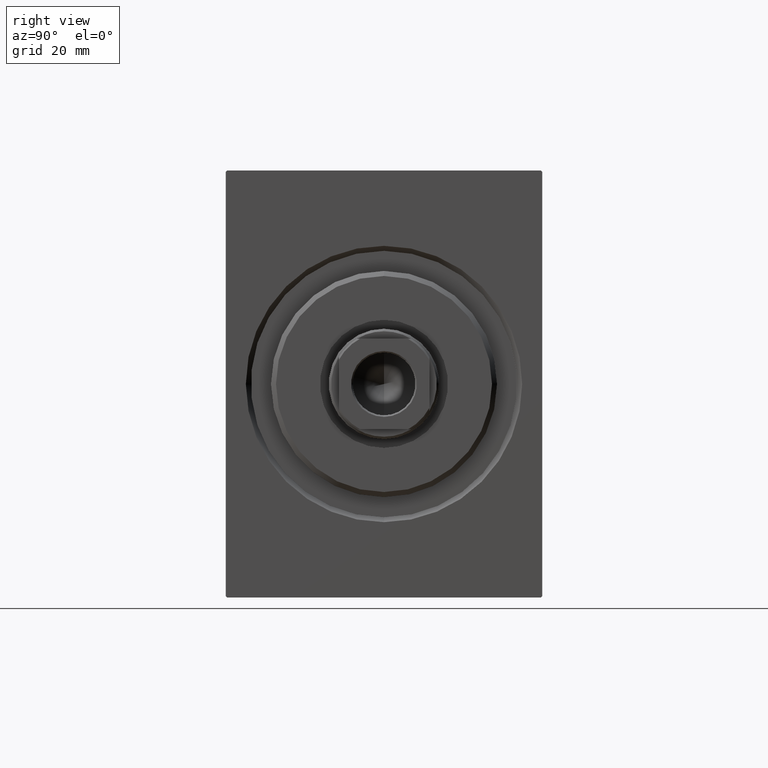
[diagram: clean part render]
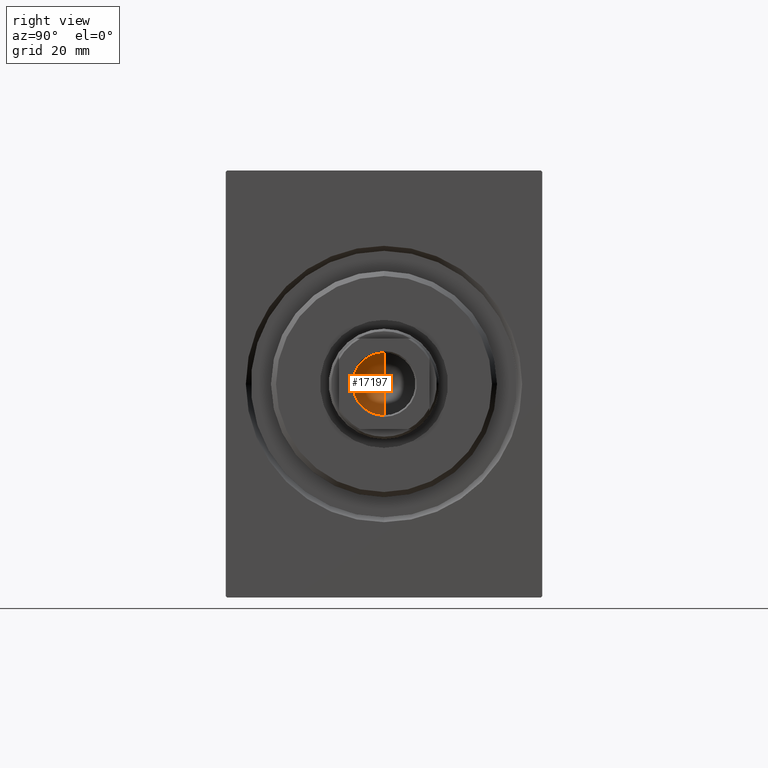
[diagram: same view with one face highlighted and labeled with its STEP entity id]
A machine part, right view. The second image highlights one B-rep face of the part: STEP entity #17197.
In plain terms, the highlighted conical surface has half-angle 59 deg.
Its self-contained STEP definition (entity closure, byte-faithful):
#340 = CARTESIAN_POINT ( 'NONE',  ( -6.249999999999995559, 7.654042494670950704E-16, 68.99999999999998579 ) ) ;
#2872 = ORIENTED_EDGE ( 'NONE', *, *, #41274, .T. ) ;
#3799 = CARTESIAN_POINT ( 'NONE',  ( 0.000000000000000000, 0.000000000000000000, 68.99999999999998579 ) ) ;
#6860 = VECTOR ( 'NONE', #14934, 1000.000000000000000 ) ;
#11566 = EDGE_CURVE ( 'NONE', #41506, #19774, #18123, .T. ) ;
#12598 = CARTESIAN_POINT ( 'NONE',  ( 0.000000000000000000, 0.000000000000000000, 68.99999999999998579 ) ) ;
#12608 = ORIENTED_EDGE ( 'NONE', *, *, #24020, .F. ) ;
#13630 = CARTESIAN_POINT ( 'NONE',  ( -5.058292539270947311E-15, 0.000000000000000000, 65.24462113107773575 ) ) ;
#13961 = AXIS2_PLACEMENT_3D ( 'NONE', #3799, #17050, #27045 ) ;
#14934 = DIRECTION ( 'NONE',  ( -0.8571673007021116675, 1.049727191138617833E-16, 0.5150380749100552658 ) ) ;
#17050 = DIRECTION ( 'NONE',  ( -0.000000000000000000, -0.000000000000000000, 1.000000000000000000 ) ) ;
#17197 = ADVANCED_FACE ( 'NONE', ( #42301 ), #17470, .F. ) ;
#17460 = CARTESIAN_POINT ( 'NONE',  ( 6.249999999999995559, 0.000000000000000000, 68.99999999999998579 ) ) ;
#17470 = CONICAL_SURFACE ( 'NONE', #42373, 6.249999999999995559, 1.029744258676653201 ) ;
#18123 = CIRCLE ( 'NONE', #13961, 6.249999999999995559 ) ;
#19774 = VERTEX_POINT ( 'NONE', #17460 ) ;
#24020 = EDGE_CURVE ( 'NONE', #36049, #19774, #28744, .T. ) ;
#25281 = DIRECTION ( 'NONE',  ( 0.8571673007021116675, 0.000000000000000000, 0.5150380749100552658 ) ) ;
#25625 = DIRECTION ( 'NONE',  ( -0.000000000000000000, -0.000000000000000000, 1.000000000000000000 ) ) ;
#26642 = ORIENTED_EDGE ( 'NONE', *, *, #11566, .T. ) ;
#27045 = DIRECTION ( 'NONE',  ( 1.000000000000000000, 0.000000000000000000, 0.000000000000000000 ) ) ;
#28744 = LINE ( 'NONE', #41960, #37167 ) ;
#32107 = DIRECTION ( 'NONE',  ( 1.000000000000000000, 0.000000000000000000, 0.000000000000000000 ) ) ;
#34254 = CARTESIAN_POINT ( 'NONE',  ( -6.249999999999995559, 7.654042494670950704E-16, 68.99999999999998579 ) ) ;
#36049 = VERTEX_POINT ( 'NONE', #13630 ) ;
#37167 = VECTOR ( 'NONE', #25281, 1000.000000000000000 ) ;
#41274 = EDGE_CURVE ( 'NONE', #36049, #41506, #41393, .T. ) ;
#41393 = LINE ( 'NONE', #34254, #6860 ) ;
#41432 = EDGE_LOOP ( 'NONE', ( #12608, #2872, #26642 ) ) ;
#41506 = VERTEX_POINT ( 'NONE', #340 ) ;
#41960 = CARTESIAN_POINT ( 'NONE',  ( 6.249999999999995559, 0.000000000000000000, 68.99999999999998579 ) ) ;
#42301 = FACE_OUTER_BOUND ( 'NONE', #41432, .T. ) ;
#42373 = AXIS2_PLACEMENT_3D ( 'NONE', #12598, #25625, #32107 ) ;